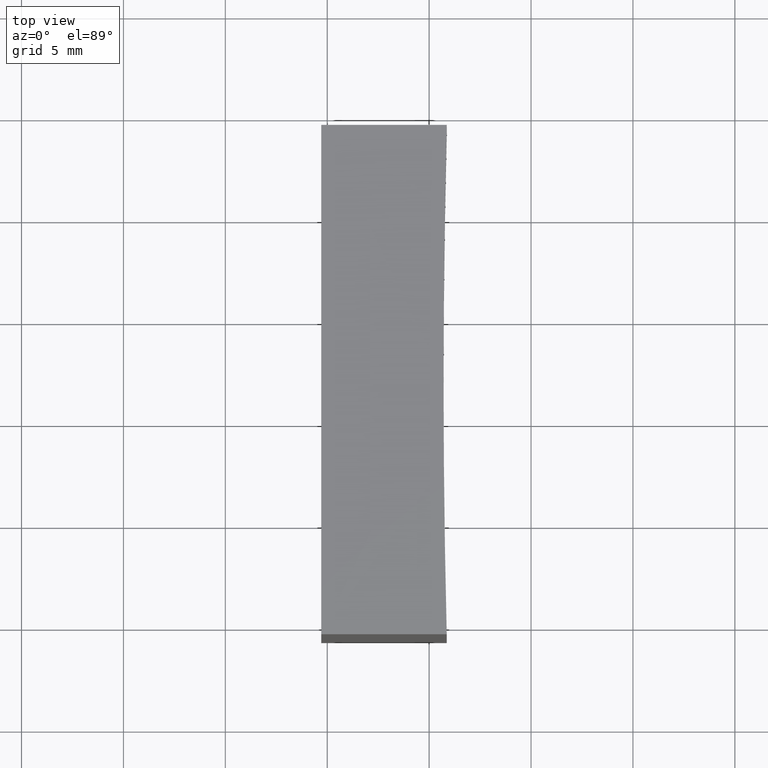
[diagram: clean part render]
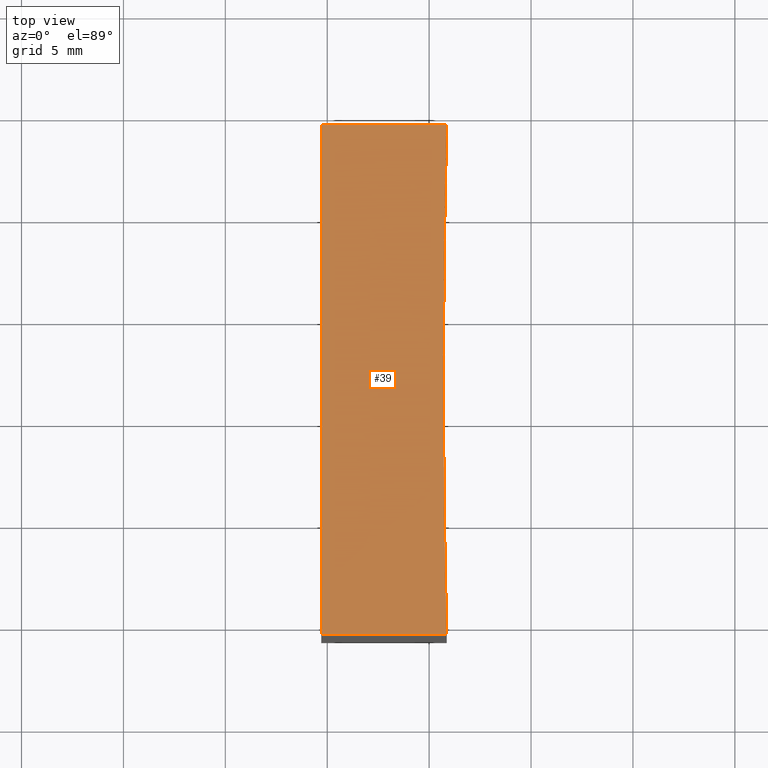
[diagram: same view with one face highlighted and labeled with its STEP entity id]
A machine part, top view. The second image highlights one B-rep face of the part: STEP entity #39.
In plain terms, the highlighted planar face has unit normal (0, 0, 1).
Its self-contained STEP definition (entity closure, byte-faithful):
#10 = LINE ( 'NONE', #106, #112 ) ;
#11 = CARTESIAN_POINT ( 'NONE',  ( 284.7071356312820900, 79.35792926776707600, 25.00000000000000000 ) ) ;
#17 = CARTESIAN_POINT ( 'NONE',  ( 790.7071356197045600, 66.85792926776608200, 25.00000000000000000 ) ) ;
#25 = EDGE_CURVE ( 'NONE', #135, #199, #120, .T. ) ;
#30 = VERTEX_POINT ( 'NONE', #11 ) ;
#31 = VERTEX_POINT ( 'NONE', #71 ) ;
#32 = CARTESIAN_POINT ( 'NONE',  ( 290.8634100413993300, 79.35792926776707600, 25.00000000000000000 ) ) ;
#39 = ADVANCED_FACE ( 'NONE', ( #206 ), #172, .T. ) ;
#49 = EDGE_CURVE ( 'NONE', #199, #102, #134, .T. ) ;
#53 = EDGE_CURVE ( 'NONE', #102, #30, #117, .T. ) ;
#60 = DIRECTION ( 'NONE',  ( -0.0000000000000000000, -0.0000000000000000000, -1.000000000000000000 ) ) ;
#71 = CARTESIAN_POINT ( 'NONE',  ( 284.7071356312820900, 54.35792926776707600, 25.00000000000000000 ) ) ;
#73 = CARTESIAN_POINT ( 'NONE',  ( 790.7071356197045600, 66.85792926776608200, 25.00000000000000000 ) ) ;
#74 = CARTESIAN_POINT ( 'NONE',  ( 284.7071356312820900, 79.35792926776707600, 25.00000000000000000 ) ) ;
#79 = DIRECTION ( 'NONE',  ( -1.000000000000000000, -0.0000000000000000000, -0.0000000000000000000 ) ) ;
#86 = EDGE_CURVE ( 'NONE', #30, #31, #149, .T. ) ;
#89 = DIRECTION ( 'NONE',  ( 1.000000000000000000, 0.0000000000000000000, 0.0000000000000000000 ) ) ;
#91 = DIRECTION ( 'NONE',  ( 0.0000000000000000000, 0.0000000000000000000, 1.000000000000000000 ) ) ;
#92 = EDGE_CURVE ( 'NONE', #31, #135, #10, .T. ) ;
#102 = VERTEX_POINT ( 'NONE', #32 ) ;
#106 = CARTESIAN_POINT ( 'NONE',  ( 290.8634100413992800, 54.35792926776736100, 25.00000000000000000 ) ) ;
#112 = VECTOR ( 'NONE', #230, 1000.000000000000000 ) ;
#114 = CARTESIAN_POINT ( 'NONE',  ( 290.7071356197043900, 66.85792926776608200, 25.00000000000000000 ) ) ;
#117 = LINE ( 'NONE', #74, #224 ) ;
#120 = CIRCLE ( 'NONE', #228, 500.0000000000001100 ) ;
#124 = VECTOR ( 'NONE', #215, 1000.000000000000000 ) ;
#133 = ORIENTED_EDGE ( 'NONE', *, *, #49, .T. ) ;
#134 = CIRCLE ( 'NONE', #208, 500.0000000000001100 ) ;
#135 = VERTEX_POINT ( 'NONE', #216 ) ;
#137 = DIRECTION ( 'NONE',  ( -0.0000000000000000000, -0.0000000000000000000, -1.000000000000000000 ) ) ;
#138 = AXIS2_PLACEMENT_3D ( 'NONE', #73, #91, #211 ) ;
#149 = LINE ( 'NONE', #188, #124 ) ;
#172 = PLANE ( 'NONE',  #138 ) ;
#173 = EDGE_LOOP ( 'NONE', ( #176, #227, #195, #133, #180 ) ) ;
#176 = ORIENTED_EDGE ( 'NONE', *, *, #86, .T. ) ;
#180 = ORIENTED_EDGE ( 'NONE', *, *, #53, .T. ) ;
#185 = CARTESIAN_POINT ( 'NONE',  ( 790.7071356197045600, 66.85792926776608200, 25.00000000000000000 ) ) ;
#188 = CARTESIAN_POINT ( 'NONE',  ( 284.7071356312820900, 54.35792926776707600, 25.00000000000000000 ) ) ;
#195 = ORIENTED_EDGE ( 'NONE', *, *, #25, .T. ) ;
#199 = VERTEX_POINT ( 'NONE', #114 ) ;
#206 = FACE_OUTER_BOUND ( 'NONE', #173, .T. ) ;
#208 = AXIS2_PLACEMENT_3D ( 'NONE', #17, #60, #217 ) ;
#211 = DIRECTION ( 'NONE',  ( 1.000000000000000000, 0.0000000000000000000, -0.0000000000000000000 ) ) ;
#215 = DIRECTION ( 'NONE',  ( -0.0000000000000000000, -1.000000000000000000, -0.0000000000000000000 ) ) ;
#216 = CARTESIAN_POINT ( 'NONE',  ( 290.8634100413992800, 54.35792926776753800, 25.00000000000000000 ) ) ;
#217 = DIRECTION ( 'NONE',  ( 1.000000000000000000, 0.0000000000000000000, 0.0000000000000000000 ) ) ;
#224 = VECTOR ( 'NONE', #79, 1000.000000000000000 ) ;
#227 = ORIENTED_EDGE ( 'NONE', *, *, #92, .T. ) ;
#228 = AXIS2_PLACEMENT_3D ( 'NONE', #185, #137, #89 ) ;
#230 = DIRECTION ( 'NONE',  ( 1.000000000000000000, 4.621214570823220700E-014, -0.0000000000000000000 ) ) ;